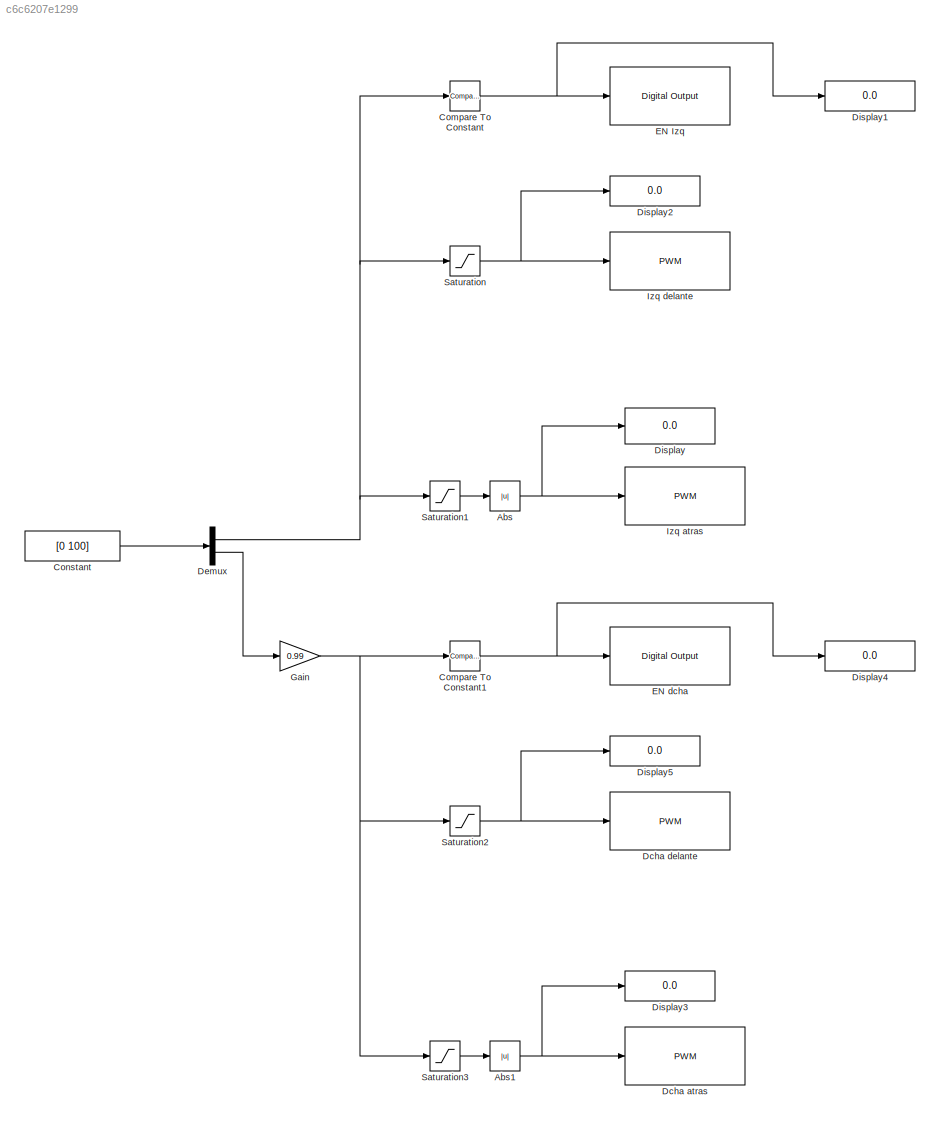
MODEL slx_c6c6207e1299
KIND model
CONFIG AbsTol = auto
CONFIG EnableMultiTasking = on
CONFIG FixedStep = auto
CONFIG MaxStep = auto
CONFIG MinStep = auto
CONFIG RelTol = 1e-3
CONFIG SampleTimeConstraint = Unconstrained
CONFIG SolverName = FixedStepAuto
CONFIG StartTime = 0.0
CONFIG StopTime = inf
BLOCK [Abs] Abs
  SaturateOnIntegerOverflow = off
BLOCK [Abs] Abs1
  SaturateOnIntegerOverflow = off
BLOCK [Reference] Compare To Constant  REF=simulink/Logic and Bit
Operations/Compare
To Constant
  SourceBlock = simulink/Logic and Bit\nOperations/Compare\nTo Constant
  SourceType = Compare To Constant
BLOCK [Reference] Compare To Constant1  REF=simulink/Logic and Bit
Operations/Compare
To Constant
  SourceBlock = simulink/Logic and Bit\nOperations/Compare\nTo Constant
  SourceType = Compare To Constant
BLOCK [Constant] Constant
  Value = [0 100]
BLOCK [Reference] Dcha atras  REF=arduinolib/PWM
  SourceBlock = arduinolib/PWM
  SourceType = Arduino PWM
BLOCK [Reference] Dcha delante  REF=arduinolib/PWM
  SourceBlock = arduinolib/PWM
  SourceType = Arduino PWM
BLOCK [Demux] Demux
  Outputs = 2
BLOCK [Display] Display
  Decimation = 1
BLOCK [Display] Display1
  Decimation = 1
BLOCK [Display] Display2
  Decimation = 1
BLOCK [Display] Display3
  Decimation = 1
BLOCK [Display] Display4
  Decimation = 1
BLOCK [Display] Display5
  Decimation = 1
BLOCK [Reference] EN Izq  REF=arduinolib/Digital Output
  SourceBlock = arduinolib/Digital Output
  SourceType = Arduino Digital Output
BLOCK [Reference] EN dcha  REF=arduinolib/Digital Output
  SourceBlock = arduinolib/Digital Output
  SourceType = Arduino Digital Output
BLOCK [Gain] Gain
  Gain = 0.99
BLOCK [Reference] Izq atras  REF=arduinolib/PWM
  SourceBlock = arduinolib/PWM
  SourceType = Arduino PWM
BLOCK [Reference] Izq delante  REF=arduinolib/PWM
  SourceBlock = arduinolib/PWM
  SourceType = Arduino PWM
BLOCK [Saturate] Saturation
  LowerLimit = 0
  UpperLimit = 255
BLOCK [Saturate] Saturation1
  LowerLimit = -255
  UpperLimit = 0
BLOCK [Saturate] Saturation2
  LowerLimit = 0
  UpperLimit = 255
BLOCK [Saturate] Saturation3
  LowerLimit = -255
  UpperLimit = 0
NET Abs1:1 -> Dcha atras:1, Display3:1
NET Abs:1 -> Display:1, Izq atras:1
NET Compare To Constant1:1 -> Display4:1, EN dcha:1
NET Compare To Constant:1 -> Display1:1, EN Izq:1
LINE Constant:1 -> Demux:1
NET Demux:1 -> Compare To Constant:1, Saturation1:1, Saturation:1
LINE Demux:2 -> Gain:1
NET Gain:1 -> Compare To Constant1:1, Saturation2:1, Saturation3:1
LINE Saturation1:1 -> Abs:1
NET Saturation2:1 -> Dcha delante:1, Display5:1
LINE Saturation3:1 -> Abs1:1
NET Saturation:1 -> Display2:1, Izq delante:1
note: NET lines group one-source signal fan-out (src -> all destinations, sorted); 1:1 wires keep LINE
